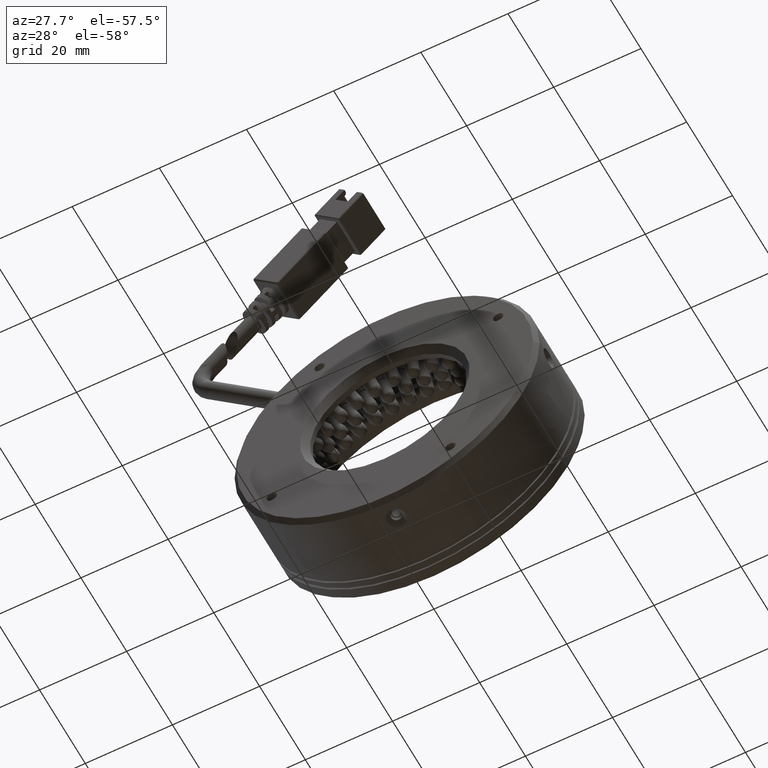
[diagram: clean part render]
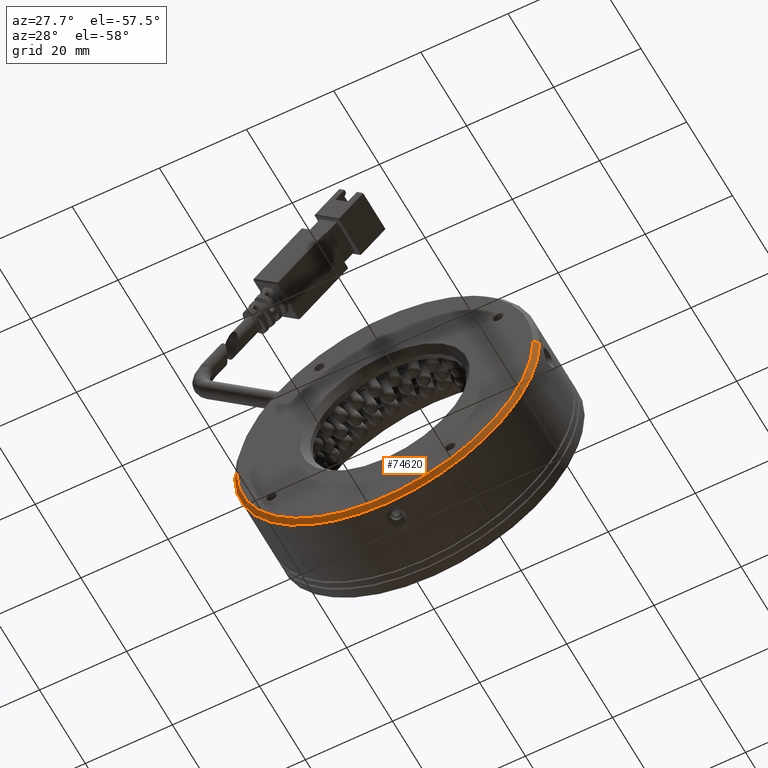
[diagram: same view with one face highlighted and labeled with its STEP entity id]
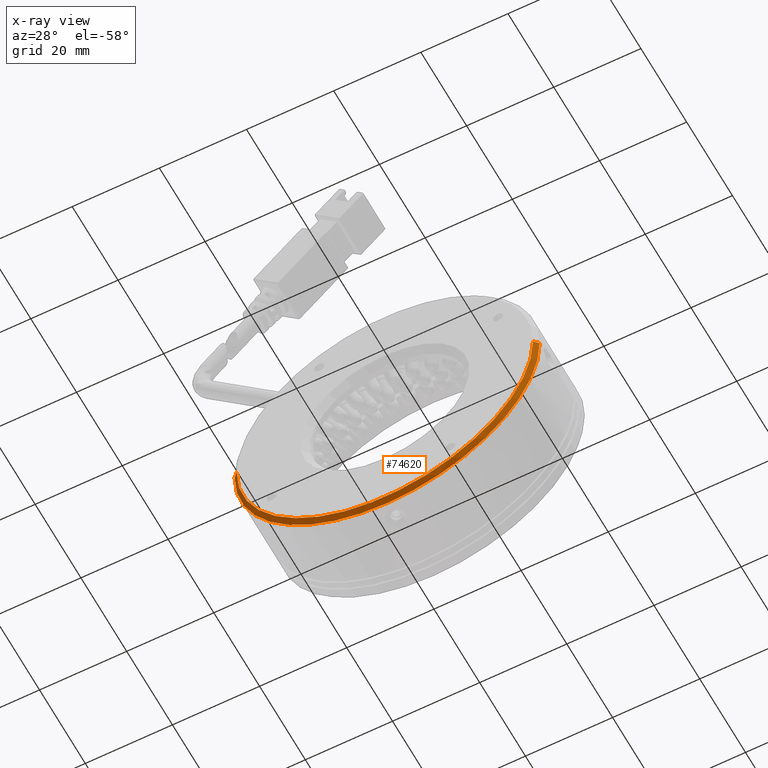
[diagram: x-ray of the same camera — body ghosted, the highlighted face saturated]
A machine part, auxiliary view. The second image highlights one B-rep face of the part: STEP entity #74620.
The next image is the same camera in x-ray: the body ghosted, the highlighted face saturated — about 0% of this face is hidden behind the body in this view.
In plain terms, the highlighted conical surface has half-angle 45 deg.
Its self-contained STEP definition (entity closure, byte-faithful):
#3413 = VERTEX_POINT ( 'NONE', #66374 ) ;
#3523 = VERTEX_POINT ( 'NONE', #91219 ) ;
#4226 = DIRECTION ( 'NONE',  ( -1.000000000000000000, 0.0000000000000000000, 0.0000000000000000000 ) ) ;
#9682 = ORIENTED_EDGE ( 'NONE', *, *, #74240, .T. ) ;
#10531 = DIRECTION ( 'NONE',  ( -0.0000000000000000000, -1.000000000000000000, -0.0000000000000000000 ) ) ;
#13849 = VERTEX_POINT ( 'NONE', #69585 ) ;
#14815 = ORIENTED_EDGE ( 'NONE', *, *, #78185, .T. ) ;
#15163 = DIRECTION ( 'NONE',  ( 0.7071067811865432400, 0.7071067811865517900, 8.659560562354881100E-017 ) ) ;
#17476 = EDGE_LOOP ( 'NONE', ( #82637, #9682, #39989, #90290, #14815 ) ) ;
#19418 = VERTEX_POINT ( 'NONE', #61802 ) ;
#24306 = EDGE_CURVE ( 'NONE', #3413, #3523, #47424, .T. ) ;
#25610 = FACE_OUTER_BOUND ( 'NONE', #17476, .T. ) ;
#28299 = AXIS2_PLACEMENT_3D ( 'NONE', #84053, #35883, #92121 ) ;
#30036 = CARTESIAN_POINT ( 'NONE',  ( -37.22376356038467500, -26.73693679055958200, -13.10242548495533300 ) ) ;
#33478 = LINE ( 'NONE', #45832, #76216 ) ;
#34751 = AXIS2_PLACEMENT_3D ( 'NONE', #58739, #10531, #66749 ) ;
#35883 = DIRECTION ( 'NONE',  ( -0.0000000000000000000, -1.000000000000000000, -0.0000000000000000000 ) ) ;
#38141 = DIRECTION ( 'NONE',  ( -1.000000000000000000, 0.0000000000000000000, 0.0000000000000000000 ) ) ;
#39116 = CARTESIAN_POINT ( 'NONE',  ( -2.223763560384672800, -25.73693679055961400, -13.10242548495532900 ) ) ;
#39989 = ORIENTED_EDGE ( 'NONE', *, *, #47584, .T. ) ;
#45832 = CARTESIAN_POINT ( 'NONE',  ( -72.22376356038468300, -25.73693679055961400, -13.10242548495533300 ) ) ;
#47424 = LINE ( 'NONE', #39116, #87695 ) ;
#47584 = EDGE_CURVE ( 'NONE', #13849, #19418, #33478, .T. ) ;
#51782 = CIRCLE ( 'NONE', #28299, 35.00000000000000000 ) ;
#52414 = CARTESIAN_POINT ( 'NONE',  ( -37.22376356038467500, -25.73693679055961400, -13.10242548495533300 ) ) ;
#55768 = CONICAL_SURFACE ( 'NONE', #74104, 35.00000000000000000, 0.7853981633974422800 ) ;
#55865 = CARTESIAN_POINT ( 'NONE',  ( -37.22376356038467500, -25.73693679055961100, -48.10242548495534000 ) ) ;
#58739 = CARTESIAN_POINT ( 'NONE',  ( -37.22376356038467500, -25.73693679055961100, -13.10242548495533300 ) ) ;
#61802 = CARTESIAN_POINT ( 'NONE',  ( -72.22376356038468300, -25.73693679055961100, -13.10242548495533300 ) ) ;
#65683 = EDGE_CURVE ( 'NONE', #19418, #78908, #69055, .T. ) ;
#66374 = CARTESIAN_POINT ( 'NONE',  ( -3.223763560384632000, -26.73693679055958200, -13.10242548495532900 ) ) ;
#66749 = DIRECTION ( 'NONE',  ( 0.0000000000000000000, -9.912705577010326800E-017, 1.000000000000000000 ) ) ;
#69055 = CIRCLE ( 'NONE', #34751, 35.00000000000000000 ) ;
#69585 = CARTESIAN_POINT ( 'NONE',  ( -71.22376356038472500, -26.73693679055958200, -13.10242548495533300 ) ) ;
#74104 = AXIS2_PLACEMENT_3D ( 'NONE', #52414, #76321, #4226 ) ;
#74240 = EDGE_CURVE ( 'NONE', #3413, #13849, #83731, .T. ) ;
#74620 = ADVANCED_FACE ( 'NONE', ( #25610 ), #55768, .T. ) ;
#76216 = VECTOR ( 'NONE', #102118, 1000.000000000000000 ) ;
#76321 = DIRECTION ( 'NONE',  ( 2.478176394252581700E-017, 1.000000000000000000, 0.0000000000000000000 ) ) ;
#78185 = EDGE_CURVE ( 'NONE', #78908, #3523, #51782, .T. ) ;
#78908 = VERTEX_POINT ( 'NONE', #55865 ) ;
#82637 = ORIENTED_EDGE ( 'NONE', *, *, #24306, .F. ) ;
#83731 = CIRCLE ( 'NONE', #98347, 34.00000000000004300 ) ;
#84053 = CARTESIAN_POINT ( 'NONE',  ( -37.22376356038467500, -25.73693679055961100, -13.10242548495533300 ) ) ;
#86260 = DIRECTION ( 'NONE',  ( 2.478176394252581700E-017, 1.000000000000000000, 0.0000000000000000000 ) ) ;
#87695 = VECTOR ( 'NONE', #15163, 1000.000000000000000 ) ;
#90290 = ORIENTED_EDGE ( 'NONE', *, *, #65683, .T. ) ;
#91219 = CARTESIAN_POINT ( 'NONE',  ( -2.223763560384672800, -25.73693679055961100, -13.10242548495532900 ) ) ;
#92121 = DIRECTION ( 'NONE',  ( 0.0000000000000000000, -9.912705577010326800E-017, 1.000000000000000000 ) ) ;
#98347 = AXIS2_PLACEMENT_3D ( 'NONE', #30036, #86260, #38141 ) ;
#102118 = DIRECTION ( 'NONE',  ( -0.7071067811865432400, 0.7071067811865517900, 0.0000000000000000000 ) ) ;